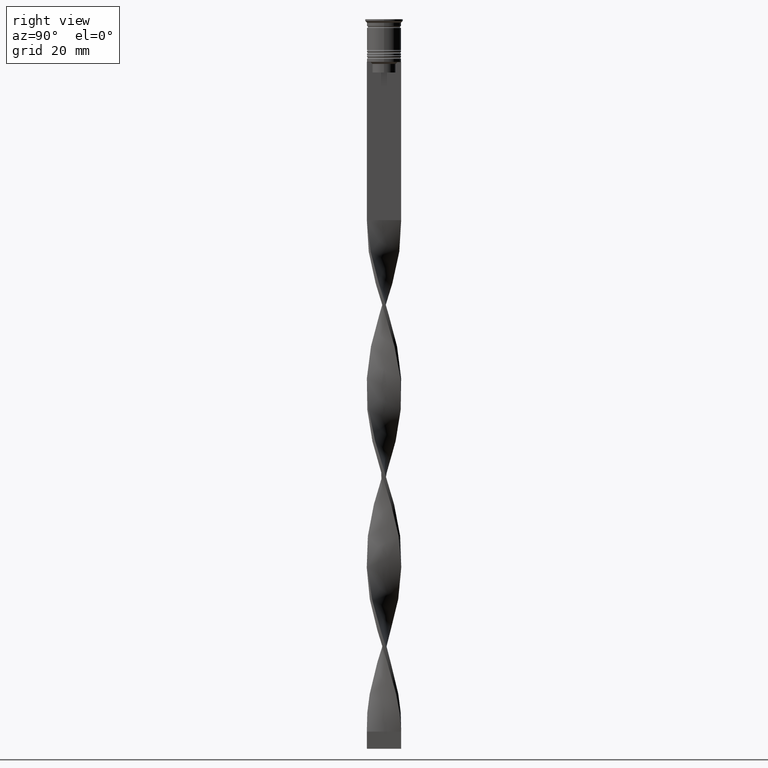
[diagram: clean part render]
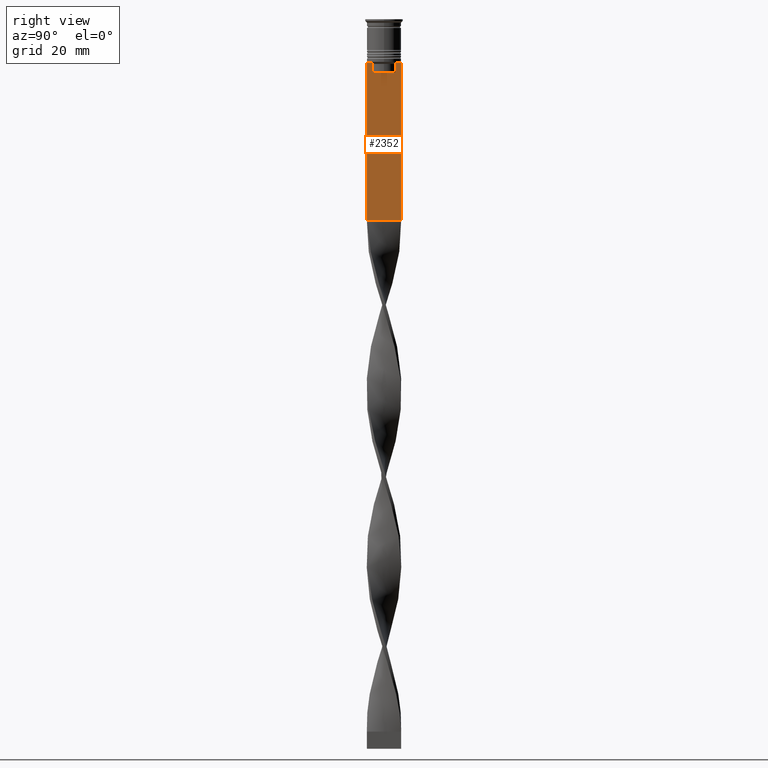
[diagram: same view with one face highlighted and labeled with its STEP entity id]
A machine part, right view. The second image highlights one B-rep face of the part: STEP entity #2352.
In plain terms, the highlighted planar face has unit normal (-1, 0, 0).
Its self-contained STEP definition (entity closure, byte-faithful):
#98 = VECTOR ( 'NONE', #192, 1000.000000000000000 ) ;
#139 = EDGE_CURVE ( 'NONE', #2724, #1333, #1464, .T. ) ;
#159 = ORIENTED_EDGE ( 'NONE', *, *, #3522, .T. ) ;
#174 = CARTESIAN_POINT ( 'NONE',  ( 0.5000000000000000000, 3.531412678228260216, -12.83345231756357840 ) ) ;
#192 = DIRECTION ( 'NONE',  ( 0.000000000000000000, -1.000000000000000000, 0.000000000000000000 ) ) ;
#234 = DIRECTION ( 'NONE',  ( 0.000000000000000000, 0.000000000000000000, 1.000000000000000000 ) ) ;
#251 = DIRECTION ( 'NONE',  ( -1.000000000000000000, 0.000000000000000000, 0.000000000000000000 ) ) ;
#268 = EDGE_LOOP ( 'NONE', ( #2984, #895, #370, #3756, #725, #2135, #159, #1120, #2817, #2348, #3536, #982 ) ) ;
#370 = ORIENTED_EDGE ( 'NONE', *, *, #2950, .T. ) ;
#387 = EDGE_CURVE ( 'NONE', #2536, #3948, #2424, .T. ) ;
#477 = VECTOR ( 'NONE', #3921, 1000.000000000000000 ) ;
#490 = VERTEX_POINT ( 'NONE', #2112 ) ;
#543 = LINE ( 'NONE', #3555, #3355 ) ;
#553 = EDGE_CURVE ( 'NONE', #1933, #490, #2231, .T. ) ;
#570 = CARTESIAN_POINT ( 'NONE',  ( 0.5000000000000000000, -4.999999999999999112, -2.450124378879110054 ) ) ;
#610 = DIRECTION ( 'NONE',  ( -0.000000000000000000, -0.000000000000000000, 1.000000000000000000 ) ) ;
#644 = LINE ( 'NONE', #3388, #3685 ) ;
#666 = CARTESIAN_POINT ( 'NONE',  ( 0.5000000000000000000, 3.363034344160045208, 0.000000000000000000 ) ) ;
#725 = ORIENTED_EDGE ( 'NONE', *, *, #2996, .T. ) ;
#744 = VERTEX_POINT ( 'NONE', #3917 ) ;
#789 = CARTESIAN_POINT ( 'NONE',  ( 0.5000000000000000000, -4.999999999999999112, -12.50000000000000000 ) ) ;
#831 = CARTESIAN_POINT ( 'NONE',  ( 0.5000000000000000000, -4.999999999999999112, -2.450124378879110054 ) ) ;
#895 = ORIENTED_EDGE ( 'NONE', *, *, #3719, .T. ) ;
#917 = VECTOR ( 'NONE', #1856, 1000.000000000000000 ) ;
#921 = CARTESIAN_POINT ( 'NONE',  ( 0.5000000000000000000, -4.999999999999999112, -12.50000000000000000 ) ) ;
#924 = VECTOR ( 'NONE', #610, 1000.000000000000000 ) ;
#938 = CARTESIAN_POINT ( 'NONE',  ( 0.5000000000000000000, -3.363034344160045208, -13.00000000000000178 ) ) ;
#982 = ORIENTED_EDGE ( 'NONE', *, *, #387, .T. ) ;
#989 = CARTESIAN_POINT ( 'NONE',  ( 0.5000000000000000000, -3.699658232838647365, -12.66676999593996555 ) ) ;
#1062 = CARTESIAN_POINT ( 'NONE',  ( 0.5000000000000000000, -3.867815921162742754, -12.50000000000000000 ) ) ;
#1102 = EDGE_CURVE ( 'NONE', #1333, #3849, #2403, .T. ) ;
#1120 = ORIENTED_EDGE ( 'NONE', *, *, #139, .T. ) ;
#1195 = CARTESIAN_POINT ( 'NONE',  ( 0.5000000000000000000, -3.363034344160045208, 0.000000000000000000 ) ) ;
#1201 = CARTESIAN_POINT ( 'NONE',  ( 0.5000000000000000000, 3.363034344160045652, -15.50000000000000000 ) ) ;
#1247 = LINE ( 'NONE', #2194, #1897 ) ;
#1255 = LINE ( 'NONE', #921, #1306 ) ;
#1261 = B_SPLINE_CURVE_WITH_KNOTS ( 'NONE', 3,
 ( #3730, #3213, #174, #3130 ),
 .UNSPECIFIED., .F., .F.,
 ( 4, 4 ),
 ( 0.006644825462451552783, 0.007355321358912435097 ),
 .UNSPECIFIED. ) ;
#1273 = VERTEX_POINT ( 'NONE', #2633 ) ;
#1306 = VECTOR ( 'NONE', #2148, 1000.000000000000000 ) ;
#1333 = VERTEX_POINT ( 'NONE', #3967 ) ;
#1424 = FACE_OUTER_BOUND ( 'NONE', #268, .T. ) ;
#1464 = LINE ( 'NONE', #789, #477 ) ;
#1523 = VERTEX_POINT ( 'NONE', #3790 ) ;
#1565 = DIRECTION ( 'NONE',  ( 0.000000000000000000, 1.000000000000000000, 0.000000000000000000 ) ) ;
#1574 = CARTESIAN_POINT ( 'NONE',  ( 0.5000000000000000000, -4.874423042781575788, -12.50000000000000000 ) ) ;
#1705 = VERTEX_POINT ( 'NONE', #1201 ) ;
#1837 = CARTESIAN_POINT ( 'NONE',  ( 0.5000000000000000000, -4.999999999999999112, -12.50000000000000000 ) ) ;
#1856 = DIRECTION ( 'NONE',  ( 0.000000000000000000, -1.000000000000000000, 0.000000000000000000 ) ) ;
#1895 = CARTESIAN_POINT ( 'NONE',  ( 0.5000000000000000000, 4.874423042781575788, -12.50000000000000000 ) ) ;
#1897 = VECTOR ( 'NONE', #2176, 1000.000000000000000 ) ;
#1933 = VERTEX_POINT ( 'NONE', #938 ) ;
#2021 = CARTESIAN_POINT ( 'NONE',  ( 0.5000000000000000000, -4.999999999999999112, -12.50000000000000000 ) ) ;
#2112 = CARTESIAN_POINT ( 'NONE',  ( 0.5000000000000000000, -3.867815921162742754, -12.50000000000000000 ) ) ;
#2120 = EDGE_CURVE ( 'NONE', #1705, #1273, #1247, .T. ) ;
#2135 = ORIENTED_EDGE ( 'NONE', *, *, #553, .T. ) ;
#2146 = AXIS2_PLACEMENT_3D ( 'NONE', #831, #251, #234 ) ;
#2148 = DIRECTION ( 'NONE',  ( 0.000000000000000000, -1.000000000000000000, 0.000000000000000000 ) ) ;
#2176 = DIRECTION ( 'NONE',  ( 0.000000000000000000, -1.000000000000000000, 0.000000000000000000 ) ) ;
#2194 = CARTESIAN_POINT ( 'NONE',  ( 0.5000000000000000000, 3.399999999999998135, -15.50000000000000000 ) ) ;
#2231 = B_SPLINE_CURVE_WITH_KNOTS ( 'NONE', 3,
 ( #3825, #2511, #989, #1062 ),
 .UNSPECIFIED., .F., .F.,
 ( 4, 4 ),
 ( 0.01632394437298965648, 0.01703543518243618576 ),
 .UNSPECIFIED. ) ;
#2263 = EDGE_CURVE ( 'NONE', #3948, #1523, #3810, .T. ) ;
#2348 = ORIENTED_EDGE ( 'NONE', *, *, #3025, .T. ) ;
#2352 = ADVANCED_FACE ( 'NONE', ( #1424 ), #2664, .F. ) ;
#2396 = CARTESIAN_POINT ( 'NONE',  ( 0.5000000000000000000, 3.363034344160045208, -13.00000000000000178 ) ) ;
#2403 = LINE ( 'NONE', #570, #3876 ) ;
#2424 = LINE ( 'NONE', #1837, #917 ) ;
#2438 = LINE ( 'NONE', #1195, #924 ) ;
#2511 = CARTESIAN_POINT ( 'NONE',  ( 0.5000000000000000000, -3.531412985305424801, -12.83345201382502765 ) ) ;
#2536 = VERTEX_POINT ( 'NONE', #3687 ) ;
#2633 = CARTESIAN_POINT ( 'NONE',  ( 0.5000000000000000000, -3.363034344160045652, -15.50000000000000000 ) ) ;
#2664 = PLANE ( 'NONE',  #2146 ) ;
#2724 = VERTEX_POINT ( 'NONE', #1574 ) ;
#2817 = ORIENTED_EDGE ( 'NONE', *, *, #1102, .T. ) ;
#2950 = EDGE_CURVE ( 'NONE', #3592, #1705, #3721, .T. ) ;
#2984 = ORIENTED_EDGE ( 'NONE', *, *, #2263, .T. ) ;
#2996 = EDGE_CURVE ( 'NONE', #1273, #1933, #2438, .T. ) ;
#3011 = CARTESIAN_POINT ( 'NONE',  ( 0.5000000000000000000, -4.999999999999999112, -58.50000000000000000 ) ) ;
#3025 = EDGE_CURVE ( 'NONE', #3849, #744, #644, .T. ) ;
#3130 = CARTESIAN_POINT ( 'NONE',  ( 0.5000000000000000000, 3.363034344160045208, -13.00000000000000178 ) ) ;
#3169 = VECTOR ( 'NONE', #3372, 1000.000000000000000 ) ;
#3213 = CARTESIAN_POINT ( 'NONE',  ( 0.5000000000000000000, 3.699657965831574913, -12.66677026074361301 ) ) ;
#3314 = EDGE_CURVE ( 'NONE', #2536, #744, #543, .T. ) ;
#3355 = VECTOR ( 'NONE', #3915, 1000.000000000000000 ) ;
#3372 = DIRECTION ( 'NONE',  ( 0.000000000000000000, 0.000000000000000000, -1.000000000000000000 ) ) ;
#3388 = CARTESIAN_POINT ( 'NONE',  ( 0.5000000000000000000, -4.999999999999999112, -58.50000000000000000 ) ) ;
#3522 = EDGE_CURVE ( 'NONE', #490, #2724, #1255, .T. ) ;
#3536 = ORIENTED_EDGE ( 'NONE', *, *, #3314, .F. ) ;
#3555 = CARTESIAN_POINT ( 'NONE',  ( 0.5000000000000000000, 5.000000000000000888, -2.450124378879110054 ) ) ;
#3564 = DIRECTION ( 'NONE',  ( 0.000000000000000000, 0.000000000000000000, -1.000000000000000000 ) ) ;
#3592 = VERTEX_POINT ( 'NONE', #2396 ) ;
#3685 = VECTOR ( 'NONE', #1565, 1000.000000000000000 ) ;
#3687 = CARTESIAN_POINT ( 'NONE',  ( 0.5000000000000000000, 5.000000000000000888, -12.50000000000000000 ) ) ;
#3719 = EDGE_CURVE ( 'NONE', #1523, #3592, #1261, .T. ) ;
#3721 = LINE ( 'NONE', #666, #3169 ) ;
#3730 = CARTESIAN_POINT ( 'NONE',  ( 0.5000000000000000000, 3.867815921162742754, -12.50000000000000000 ) ) ;
#3756 = ORIENTED_EDGE ( 'NONE', *, *, #2120, .T. ) ;
#3790 = CARTESIAN_POINT ( 'NONE',  ( 0.5000000000000000000, 3.867815921162742754, -12.50000000000000000 ) ) ;
#3810 = LINE ( 'NONE', #2021, #98 ) ;
#3825 = CARTESIAN_POINT ( 'NONE',  ( 0.5000000000000000000, -3.363034344160045208, -13.00000000000000178 ) ) ;
#3849 = VERTEX_POINT ( 'NONE', #3011 ) ;
#3876 = VECTOR ( 'NONE', #3564, 1000.000000000000000 ) ;
#3915 = DIRECTION ( 'NONE',  ( 0.000000000000000000, 0.000000000000000000, -1.000000000000000000 ) ) ;
#3917 = CARTESIAN_POINT ( 'NONE',  ( 0.5000000000000000000, 5.000000000000000888, -58.50000000000000000 ) ) ;
#3921 = DIRECTION ( 'NONE',  ( 0.000000000000000000, -1.000000000000000000, 0.000000000000000000 ) ) ;
#3948 = VERTEX_POINT ( 'NONE', #1895 ) ;
#3967 = CARTESIAN_POINT ( 'NONE',  ( 0.5000000000000000000, -4.999999999999999112, -12.50000000000000000 ) ) ;